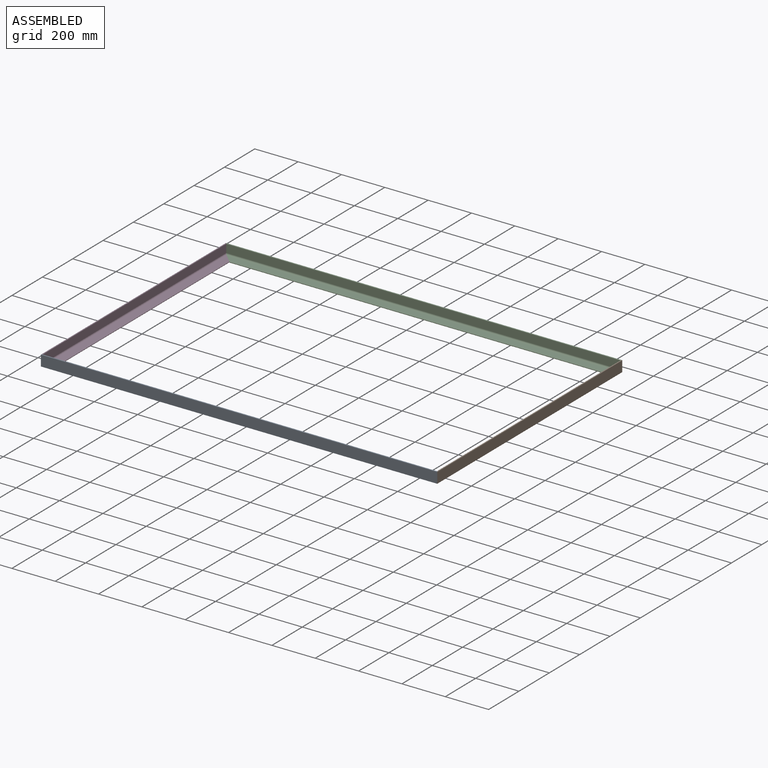
[diagram: assembled view]
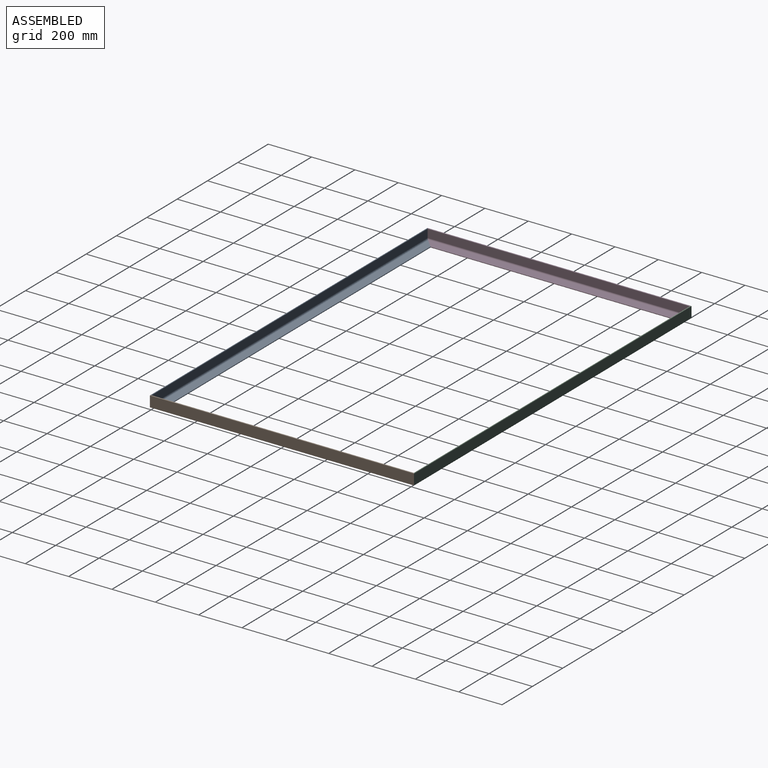
[diagram: assembled view, second angle]
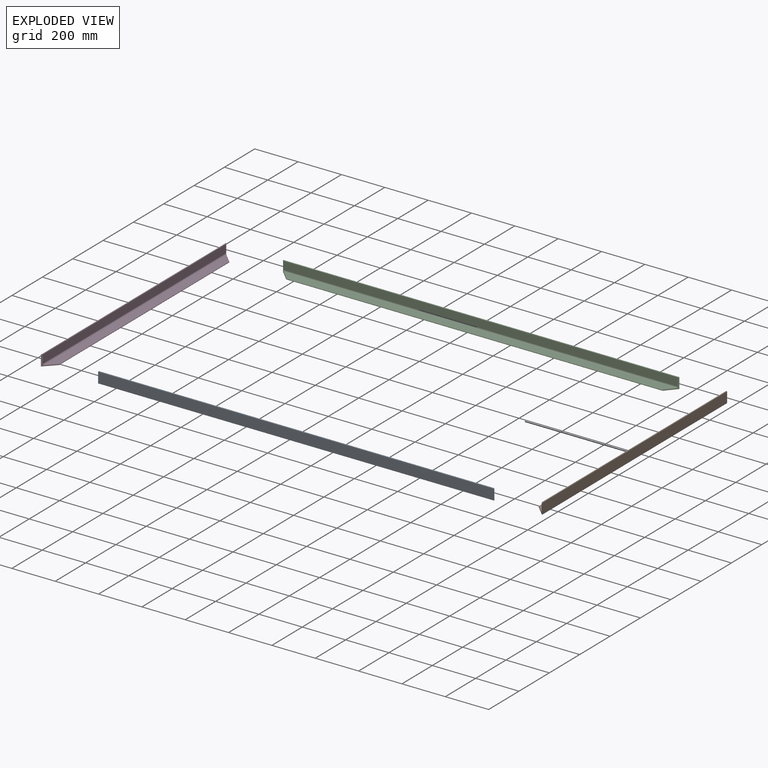
[diagram: exploded view]
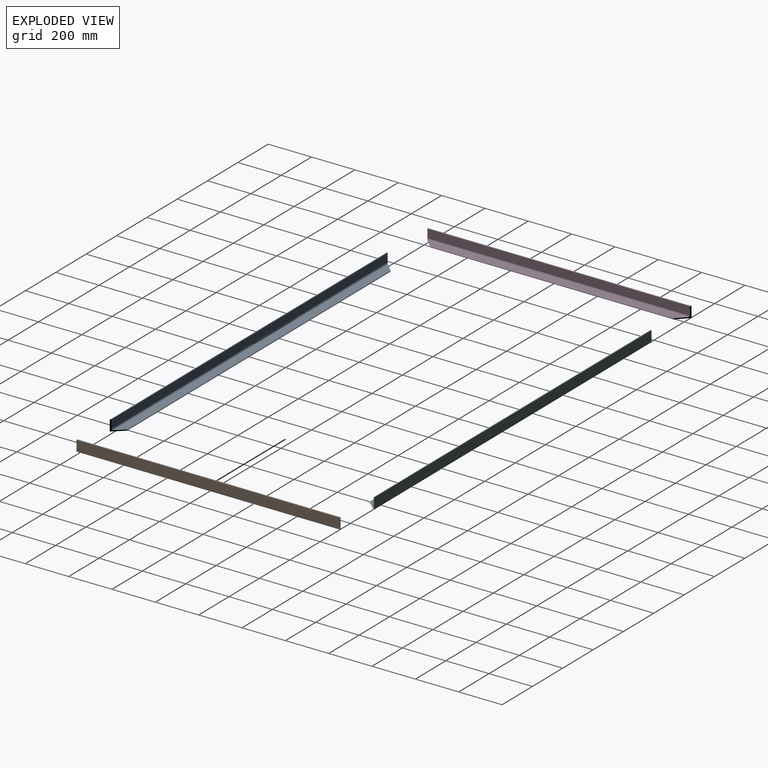
[diagram: exploded view, second angle]
ASSEMBLY  parts=4 mates=3
PART A: 9 faces, bbox 1828.8x50.8x50.8 mm
  f0: plane 1828.8x48.42mm, normal (0,0,-1), area 86357.2mm2, adj f1,f6,f7,f8
  f1: cylinder r=2.38mm len=1738.3mm, axis (-1,0,0), area 12982.8mm2, adj f0,f2,f7,f8
  f2: plane 1808.03x37.31mm, normal (0,0,1), area 66150mm2, adj f1,f3,f7,f8
  f3: cylinder r=6.35mm len=1819.9mm, axis (-1,0,0), area 18109.7mm2, adj f2,f4,f7,f8
  f4: plane 1819.9x37.31mm, normal (0,1,0), area 67893.6mm2, adj f3,f5,f7,f8
  f5: cylinder r=2.38mm len=1828.8mm, axis (-1,0,0), area 13647.8mm2, adj f4,f6,f7,f8
  f6: plane 1828.8x48.42mm, normal (0,-1,0), area 88548.2mm2, adj f0,f5,f7,f8
  f7: plane 50.8x50.8mm, normal (0.75,0.66,0), area 616.1mm2, adj f0,f1,f2,f3,f4,f5,f6
  f8: plane 50.8x50.8mm, normal (-0.71,0.71,0), area 657.6mm2, adj f0,f1,f2,f3,f4,f5,f6
PART B: 9 faces, bbox 50.8x1219.2x50.8 mm
  f0: plane 1219.2x48.42mm, normal (0,0,-1), area 56706.2mm2, adj f1,f6,f7,f8
  f1: cylinder r=2.38mm len=1123.13mm, axis (0,-1,0), area 8379.5mm2, adj f0,f2,f7,f8
  f2: plane 1197.15x37.31mm, normal (0,0,1), area 43280.4mm2, adj f1,f3,f7,f8
  f3: cylinder r=6.35mm len=1209.75mm, axis (0,-1,0), area 12021.1mm2, adj f2,f4,f7,f8
  f4: plane 1209.75x37.31mm, normal (-1,0,0), area 45131.2mm2, adj f3,f5,f7,f8
  f5: cylinder r=2.38mm len=1219.2mm, axis (0,-1,0), area 9085.4mm2, adj f4,f6,f7,f8
  f6: plane 1219.2x48.42mm, normal (1,0,0), area 59032.1mm2, adj f0,f5,f7,f8
  f7: plane 50.8x50.8mm, normal (-0.7,-0.71,0), area 652.4mm2, adj f0,f1,f2,f3,f4,f5,f6
  f8: plane 50.8x50.8mm, normal (-0.71,0.71,0), area 657.6mm2, adj f0,f1,f2,f3,f4,f5,f6
PART C: 9 faces, bbox 1828.8x50.8x50.8 mm
  f0: plane 1828.8x48.42mm, normal (0,0,-1), area 86357.2mm2, adj f1,f6,f7,f8
  f1: cylinder r=2.38mm len=1738.3mm, axis (-1,0,0), area 12982.8mm2, adj f0,f2,f7,f8
  f2: plane 1808.03x37.31mm, normal (0,0,1), area 66150mm2, adj f1,f3,f7,f8
  f3: cylinder r=6.35mm len=1819.9mm, axis (-1,0,0), area 18109.7mm2, adj f2,f4,f7,f8
  f4: plane 1819.9x37.31mm, normal (0,-1,0), area 67893.6mm2, adj f3,f5,f7,f8
  f5: cylinder r=2.38mm len=1828.8mm, axis (-1,0,0), area 13647.8mm2, adj f4,f6,f7,f8
  f6: plane 1828.8x48.42mm, normal (0,1,0), area 88548.2mm2, adj f0,f5,f7,f8
  f7: plane 50.8x50.8mm, normal (0.75,-0.66,0), area 616.1mm2, adj f0,f1,f2,f3,f4,f5,f6
  f8: plane 50.8x50.8mm, normal (-0.71,-0.71,0), area 657.6mm2, adj f0,f1,f2,f3,f4,f5,f6
PART D: 9 faces, bbox 50.8x1219.2x50.8 mm
  f0: plane 1219.2x48.42mm, normal (0,0,-1), area 56706.2mm2, adj f1,f6,f7,f8
  f1: cylinder r=2.38mm len=1123.13mm, axis (0,1,0), area 8379.5mm2, adj f0,f2,f7,f8
  f2: plane 1197.15x37.31mm, normal (0,0,1), area 43280.4mm2, adj f1,f3,f7,f8
  f3: cylinder r=6.35mm len=1209.75mm, axis (0,1,0), area 12021.1mm2, adj f2,f4,f7,f8
  f4: plane 1209.75x37.31mm, normal (1,0,0), area 45131.2mm2, adj f3,f5,f7,f8
  f5: cylinder r=2.38mm len=1219.2mm, axis (0,1,0), area 9085.4mm2, adj f4,f6,f7,f8
  f6: plane 1219.2x48.42mm, normal (-1,0,0), area 59032.1mm2, adj f0,f5,f7,f8
  f7: plane 50.8x50.8mm, normal (0.7,0.71,0), area 652.4mm2, adj f0,f1,f2,f3,f4,f5,f6
  f8: plane 50.8x50.8mm, normal (0.71,-0.71,0), area 657.6mm2, adj f0,f1,f2,f3,f4,f5,f6
PLACE A t=(284.32,-1170.91,-38.35)mm
PLACE B t=(2137.72,32.93,-48.94)mm
PLACE C t=(284.32,17.57,-38.35)mm
PLACE D t=(308.92,32.93,-48.94)mm
MATE fastened B.f0 <-> A.f0  axis (0,0,1) through (2113.12,-1186.27,-53.71)mm
MATE fastened D.f0 <-> C.f0  axis (0,0,1) through (284.32,32.93,-53.71)mm
MATE fastened A.f0 <-> D.f0  axis (0,0,1) through (284.32,-1186.27,-53.71)mm
